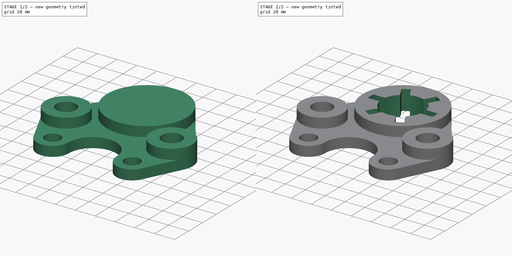
[diagram: build sequence overview — one tinted view per stage of 2, left to right]
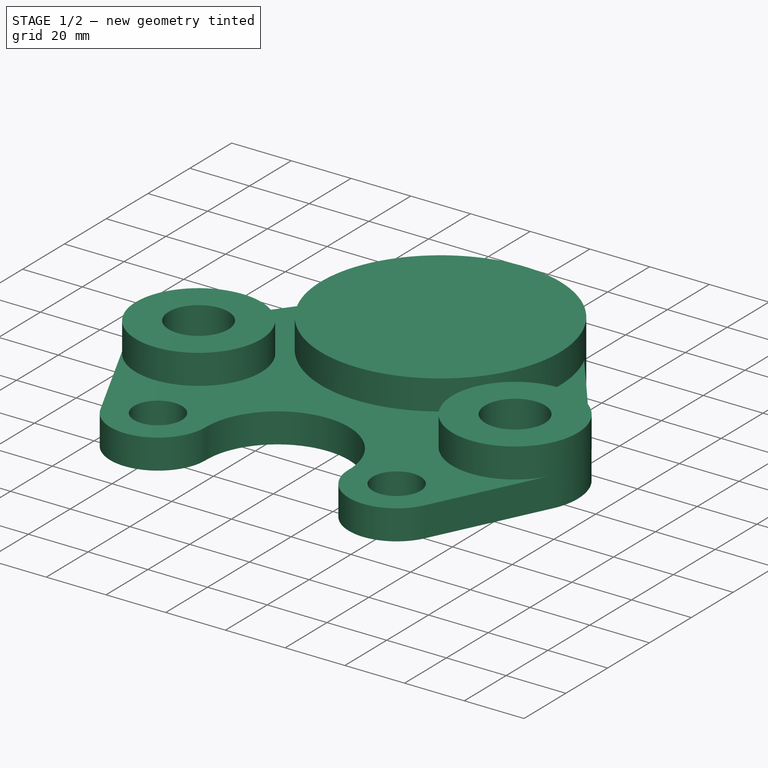
[diagram: stage 1 of 2 — iso view after this stage's code; geometry added in this stage tinted green]
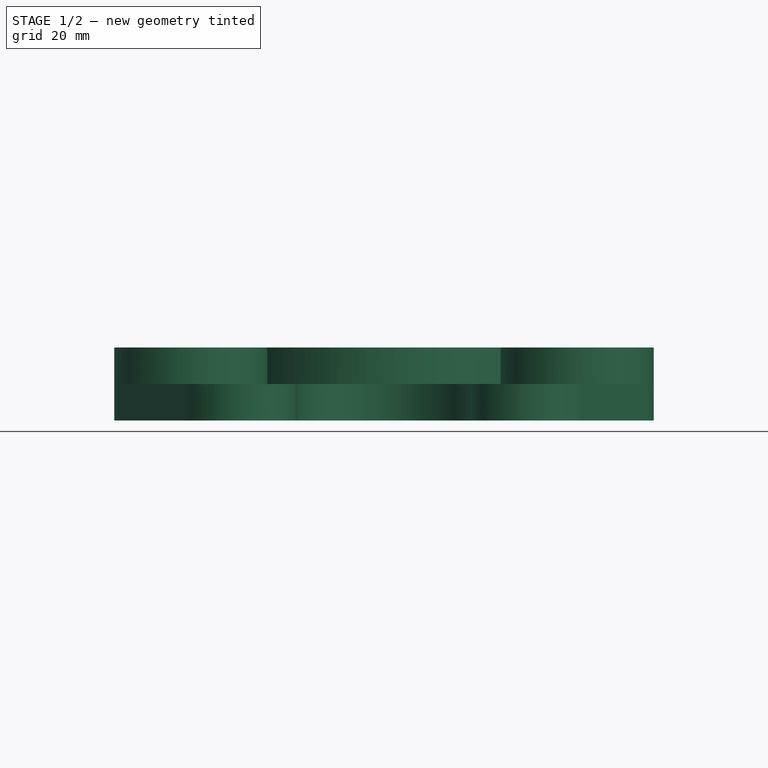
[diagram: stage 1 of 2 — front view after this stage's code; geometry added in this stage tinted green]
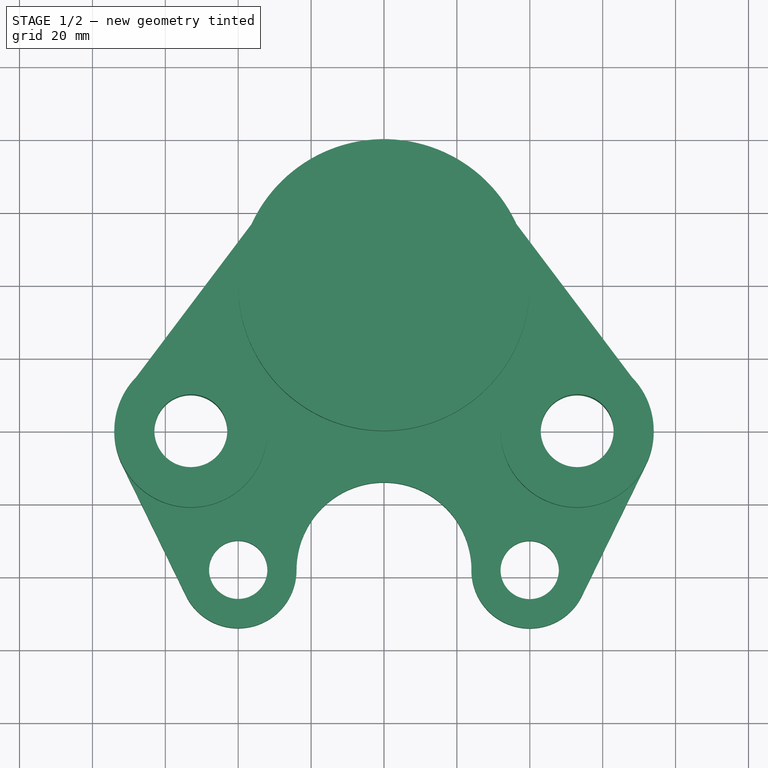
[diagram: stage 1 of 2 — top view after this stage's code; geometry added in this stage tinted green]
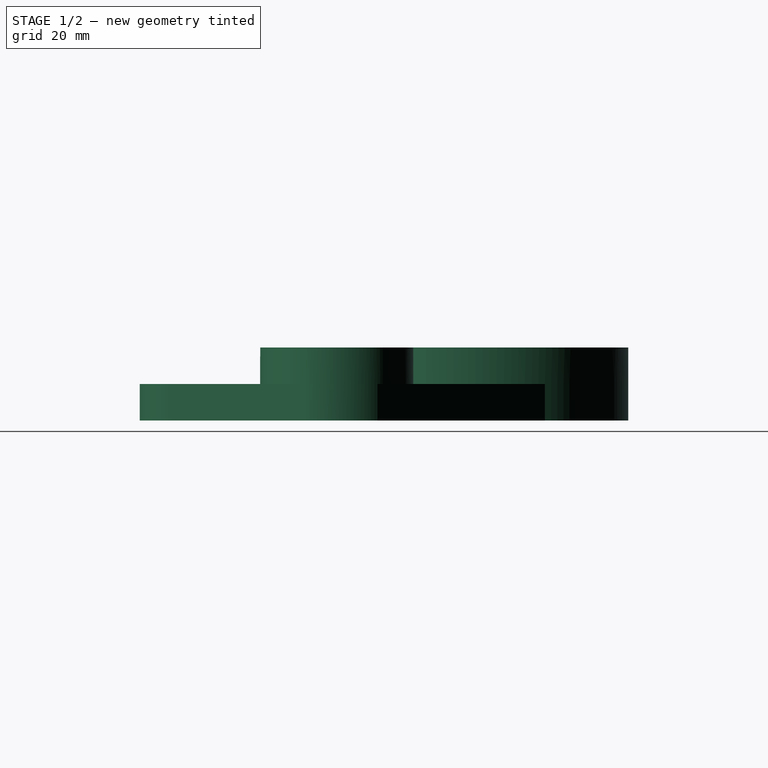
[diagram: stage 1 of 2 — right view after this stage's code; geometry added in this stage tinted green]
FCSTD DOCUMENT  (FreeCAD 0.19R24291 (Git))
Label: GASKET
License: All rights reserved
LicenseURL: http://en.wikipedia.org/wiki/All_rights_reserved
objects: Sketcher::SketchObject×3, PartDesign::Pad×2, PartDesign::Pocket×1, PartDesign::PolarPattern×1, PartDesign::Body×1
note: 11 computed .brp shape members not serialized (recipe doc carries the construction recipe); baked Part::Feature solids carry a one-line shape summary decoded from their .brp

FEATURE [Sketcher::SketchObject] Sketch
  FullyConstrained = false
  MapMode = 5
  Support = -> [XY_Plane]
  sketch-geometry (14):
    g0: ArcOfCircle CenterX=3.62134e-11 CenterY=2e-16 CenterZ=0 NormalX=0 NormalY=0 NormalZ=1 AngleXU=0 Radius=40 StartAngle=0.442154 EndAngle=2.69944
    g1: ArcOfCircle CenterX=-53 CenterY=-40 CenterZ=0 NormalX=0 NormalY=0 NormalZ=1 AngleXU=0 Radius=21 StartAngle=2.57883 EndAngle=3.54762
    g2: ArcOfCircle CenterX=-40 CenterY=-78 CenterZ=0 NormalX=0 NormalY=0 NormalZ=1 AngleXU=0 Radius=16 StartAngle=3.63675 EndAngle=6.28319
    g3: ArcOfCircle CenterX=-3.62133e-11 CenterY=-77.9999 CenterZ=0 NormalX=0 NormalY=0 NormalZ=1 AngleXU=0 Radius=24 StartAngle=0.0288041 EndAngle=3.1416
    g4: LineSegment StartX=-36.1533 StartY=17.1155 StartZ=0 EndX=-70.7614 EndY=-28.7959 EndZ=0
    g5: LineSegment StartX=-72.2927 StartY=-48.2942 StartZ=0 EndX=-54.0783 EndY=-85.6027 EndZ=0
    g6: LineSegment StartX=36.1533 StartY=17.1155 StartZ=0 EndX=70.7614 EndY=-28.7959 EndZ=0
    g7: ArcOfCircle CenterX=53 CenterY=-40 CenterZ=0 NormalX=0 NormalY=0 NormalZ=1 AngleXU=0 Radius=21 StartAngle=5.87716 EndAngle=6.84595
    g8: LineSegment StartX=72.2927 StartY=-48.2942 StartZ=0 EndX=54.0783 EndY=-85.6027 EndZ=0
    g9: ArcOfCircle CenterX=39.9728 CenterY=-78.0505 CenterZ=0 NormalX=0 NormalY=0 NormalZ=1 AngleXU=0 Radius=16 StartAngle=3.09521 EndAngle=5.79161
    g10: Circle CenterX=-53 CenterY=-40 CenterZ=0 NormalX=0 NormalY=0 NormalZ=1 AngleXU=0 Radius=10
    g11: Circle CenterX=53 CenterY=-40 CenterZ=0 NormalX=0 NormalY=0 NormalZ=1 AngleXU=0 Radius=10
    g12: Circle CenterX=-40 CenterY=-78 CenterZ=0 NormalX=0 NormalY=0 NormalZ=1 AngleXU=0 Radius=8
    g13: Circle CenterX=39.9728 CenterY=-78.0505 CenterZ=0 NormalX=0 NormalY=0 NormalZ=1 AngleXU=0 Radius=8
  constraints (38):
    c: Coincident(g0,g-1)
    c: DistanceX(g1,g0) = 53
    c: DistanceY(g1,g0) = 40
    c: DistanceY(g2,g0) = 78
    c: DistanceX(g2,g0) = 40
    c: PointOnObject(g3,g-2)
    c: Radius(g0) = 40
    c: Radius(g1) = 21
    c: Radius(g3) = 24
    c: Radius(g2) = 16
    c: Coincident(g3,g2)
    c: PointOnObject(g5,g2)
    c: Coincident(g0,g4)
    c: Coincident(g1,g4)
    c: Coincident(g1,g5)
    c: PointOnObject(g2,g5)
    c: Coincident(g2,g5)
    c: Radius(g7) = 21
    c: Radius(g9) = 16
    c: PointOnObject(g8,g9)
    c: Coincident(g7,g6)
    c: Coincident(g7,g8)
    c: PointOnObject(g9,g8)
    c: Coincident(g9,g8)
    c: Coincident(g0,g6)
    c: Symmetric(g0,g0,g-2)
    c: Symmetric(g1,g6,g-2)
    c: Symmetric(g1,g7,g-2)
    c: Coincident(g3,g9)
    c: Symmetric(g2,g8,g-2)
    c: Coincident(g11,g7)
    c: Coincident(g10,g1)
    c: Radius(g10) = 10
    c: Radius(g11) = 10
    c: Coincident(g13,g9)
    c: Coincident(g12,g2)
    c: Radius(g12) = 8
    c: Radius(g13) = 8
FEATURE [PartDesign::Pad] Pad
  Direction = (1,1,1)
  Length = 10
  Length2 = 100
  Profile = -> Sketch
  Type = 0
FEATURE [Sketcher::SketchObject] Sketch001
  FullyConstrained = false
  MapMode = 5
  Placement = pos=(0,0,10) rot=(0,0,1;0rad)
  Support = -> [Pad]
  sketch-geometry (5):
    g0: Circle CenterX=0 CenterY=0 CenterZ=0 NormalX=0 NormalY=0 NormalZ=1 AngleXU=0 Radius=40
    g1: Circle CenterX=-53 CenterY=-40 CenterZ=0 NormalX=0 NormalY=0 NormalZ=1 AngleXU=0 Radius=21
    g2: Circle CenterX=-53 CenterY=-40 CenterZ=0 NormalX=0 NormalY=0 NormalZ=1 AngleXU=0 Radius=10
    g3: Circle CenterX=53 CenterY=-40 CenterZ=0 NormalX=0 NormalY=0 NormalZ=1 AngleXU=0 Radius=21
    g4: Circle CenterX=53 CenterY=-40 CenterZ=0 NormalX=0 NormalY=0 NormalZ=1 AngleXU=0 Radius=10
  constraints (10):
    c: Coincident(g0,g-1)
    c: Radius(g0) = 40
    c: DistanceX(g1,g0) = 53
    c: DistanceY(g1,g0) = 40
    c: Radius(g1) = 21
    c: Coincident(g2,g1)
    c: Radius(g2) = 10
    c: Radius(g3) = 21
    c: Coincident(g4,g3)
    c: Radius(g4) = 10
FEATURE [PartDesign::Pad] Pad001
  BaseFeature = -> Pad
  Direction = (1,1,1)
  Length = 10
  Length2 = 100
  Profile = -> Sketch001
  Type = 0
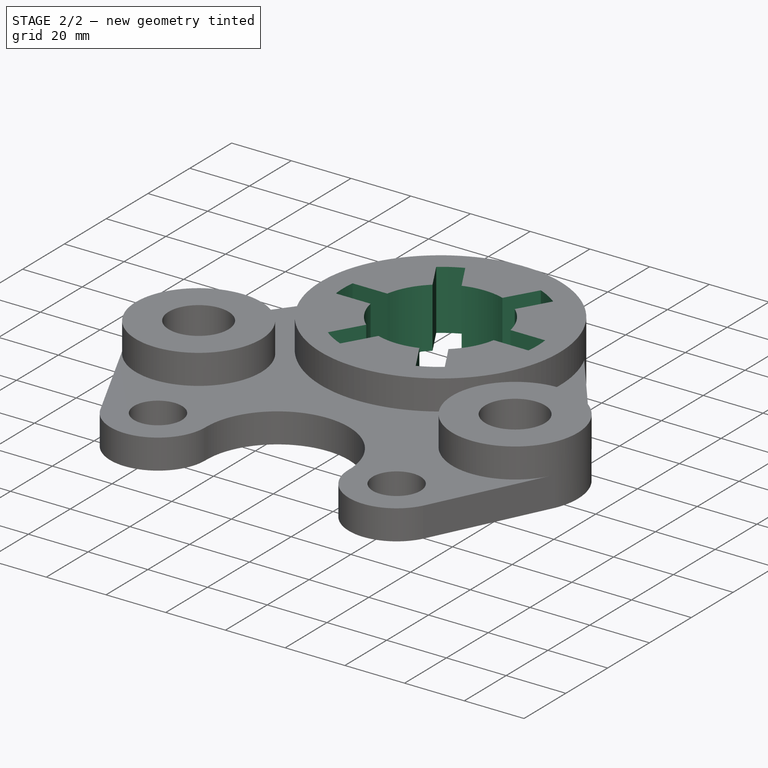
[diagram: stage 2 of 2 — iso view after this stage's code; geometry added in this stage tinted green]
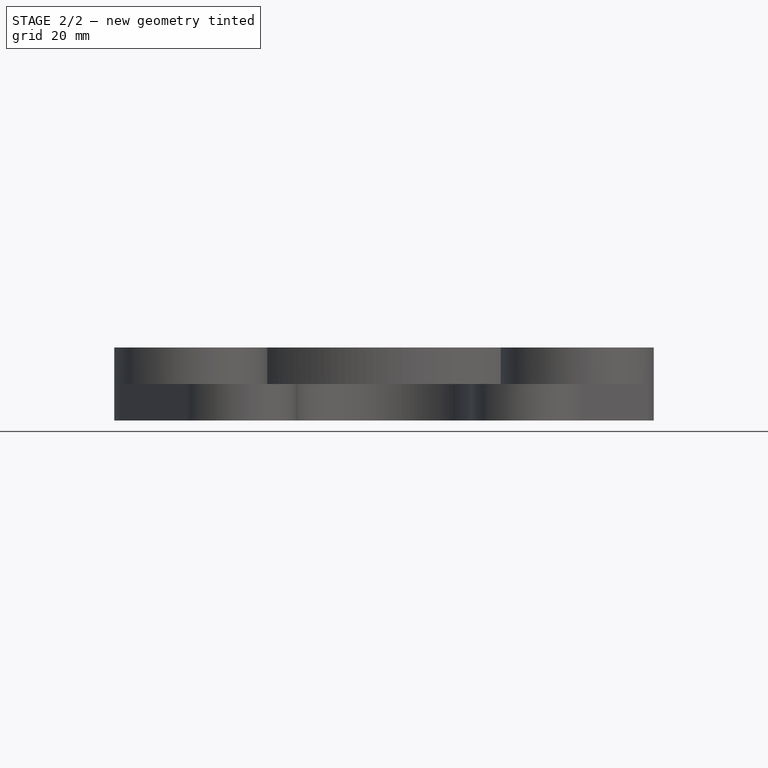
[diagram: stage 2 of 2 — front view after this stage's code; geometry added in this stage tinted green]
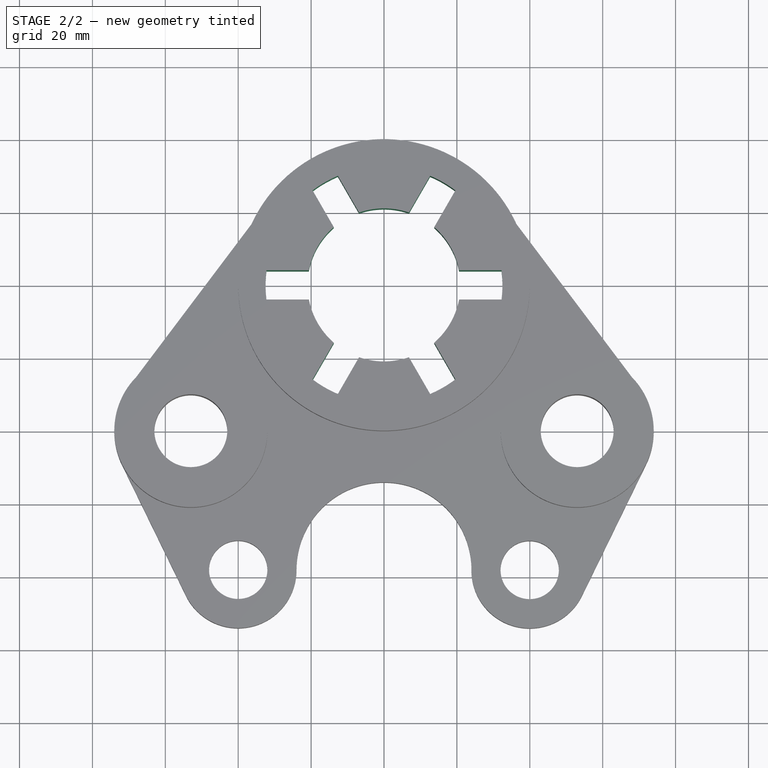
[diagram: stage 2 of 2 — top view after this stage's code; geometry added in this stage tinted green]
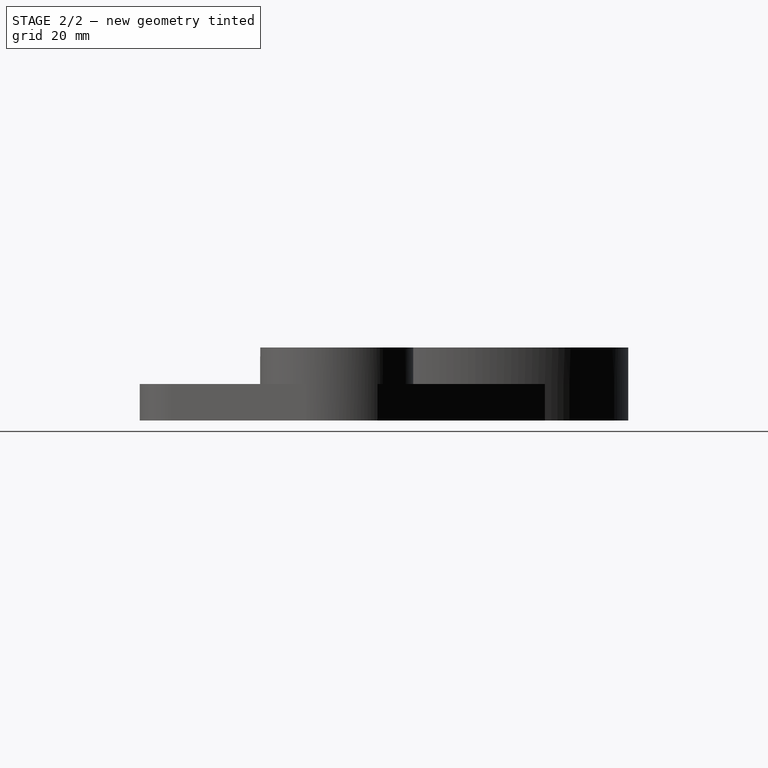
[diagram: stage 2 of 2 — right view after this stage's code; geometry added in this stage tinted green]
FEATURE [Sketcher::SketchObject] Sketch002
  FullyConstrained = true
  MapMode = 5
  Placement = pos=(0,0,20) rot=(0,0,1;0rad)
  Support = -> [Pad001]
  sketch-geometry (4):
    g0: ArcOfCircle CenterX=0 CenterY=0 CenterZ=0 NormalX=0 NormalY=0 NormalZ=1 AngleXU=0 Radius=32.5 StartAngle=3.0182 EndAngle=3.26498
    g1: ArcOfCircle CenterX=0 CenterY=0 CenterZ=0 NormalX=0 NormalY=0 NormalZ=1 AngleXU=0 Radius=21 StartAngle=3.33324 EndAngle=9.23313
    g2: LineSegment StartX=-32.2529 StartY=4 StartZ=0 EndX=-20.6155 EndY=4 EndZ=0
    g3: LineSegment StartX=-32.2529 StartY=-4 StartZ=0 EndX=-20.6155 EndY=-4 EndZ=0
  constraints (12):
    c: Coincident(g0,g-1)
    c: Coincident(g1,g0)
    c: Radius(g0) = 32.5
    c: Radius(g1) = 21
    c: Horizontal(g2)
    c: Horizontal(g3)
    c: DistanceY(g3,g2) = 8
    c: DistanceY(g-1,g2) = 4
    c: Coincident(g1,g3)
    c: Coincident(g1,g2)
    c: Coincident(g0,g2)
    c: Coincident(g0,g3)
FEATURE [PartDesign::Pocket] Pocket
  BaseFeature = -> Pad001
  Length = 5
  Length2 = 100
  Profile = -> Sketch002
  Type = 1
FEATURE [PartDesign::PolarPattern] PolarPattern
  Angle = 360
  Axis = -> Sketch002 [N_Axis]
  BaseFeature = -> Pocket
  Occurrences = 6
  Originals = -> [Pocket]
FEATURE [PartDesign::Body] Body
  Group = -> [Sketch,Pad,Sketch001,Pad001,Sketch002,Pocket,PolarPattern]
  Origin = -> Origin
  Tip = -> PolarPattern
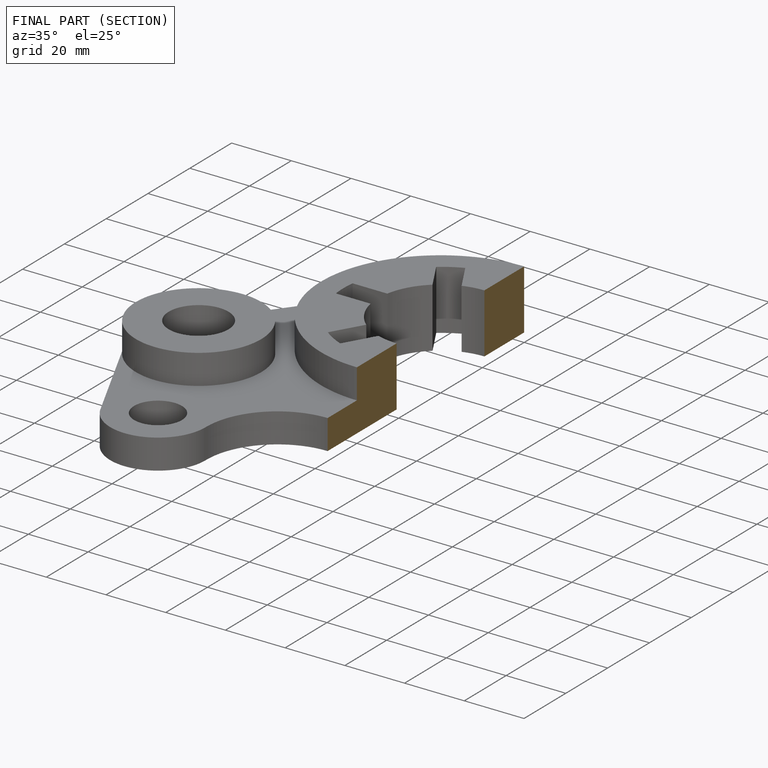
[diagram: finished part — half-section view (interior)]
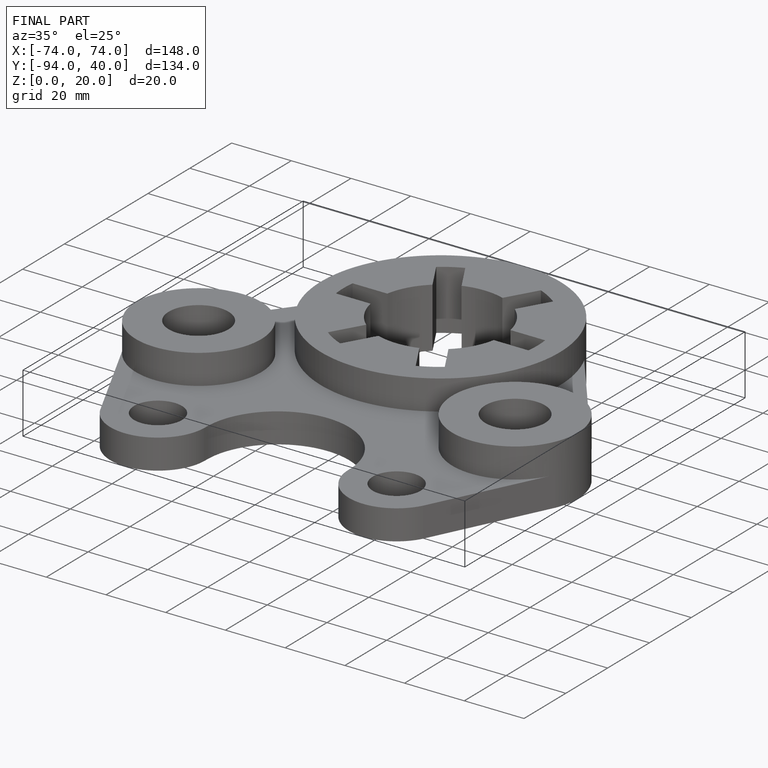
[diagram: finished part — iso view with bounding-box wireframe]
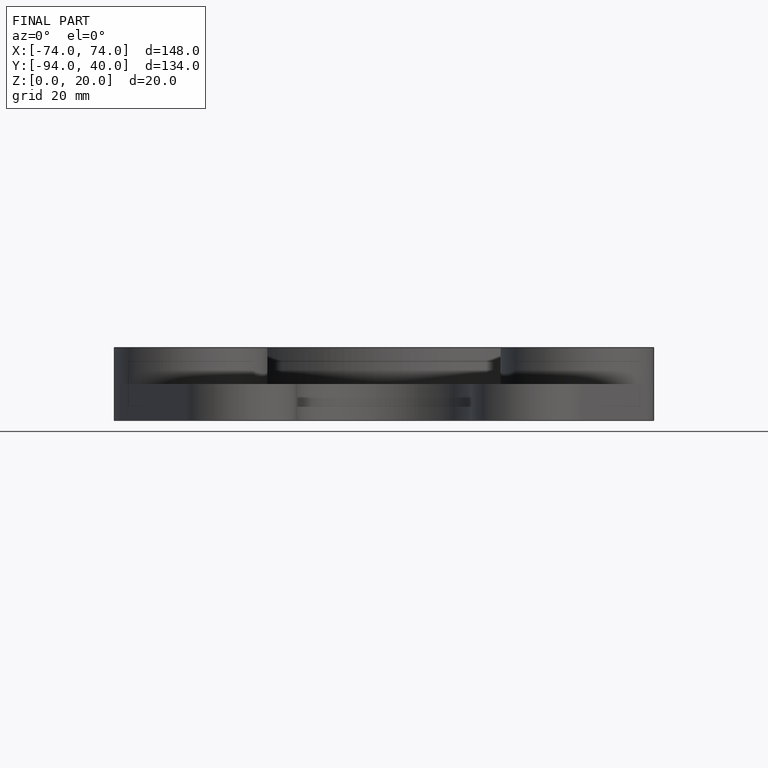
[diagram: finished part — front view with bounding-box wireframe]
